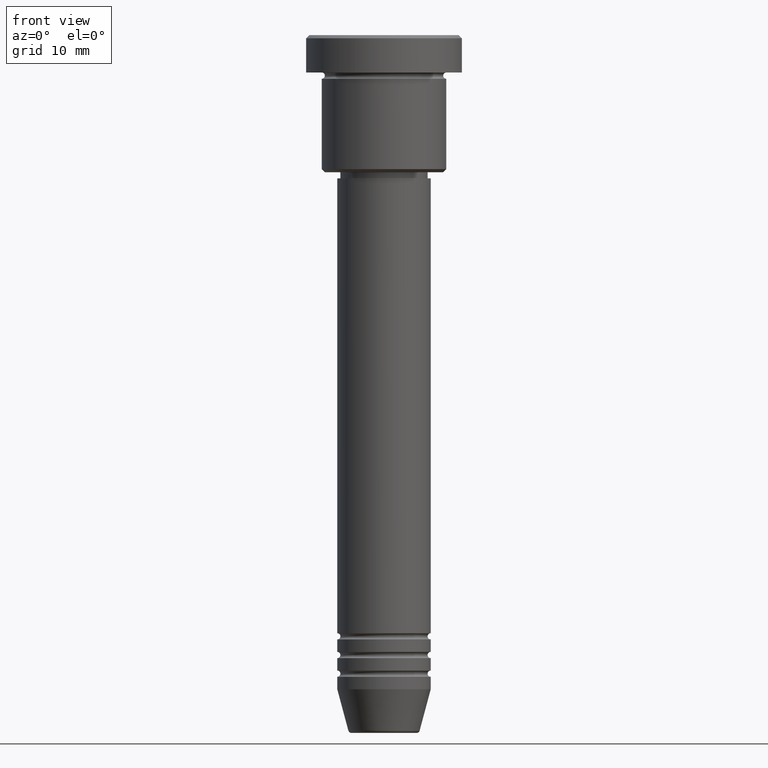
[diagram: clean part render]
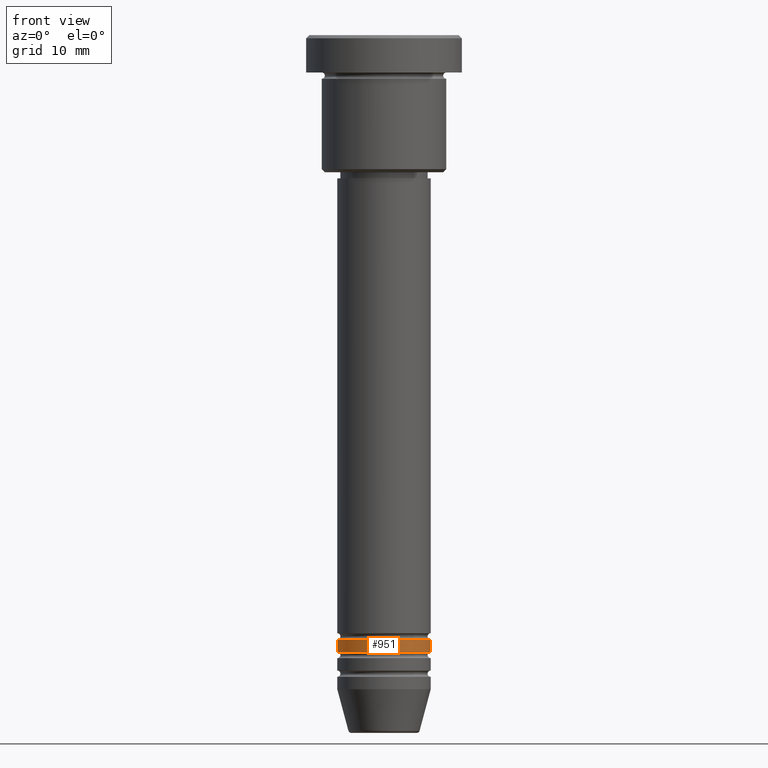
[diagram: same view with one face highlighted and labeled with its STEP entity id]
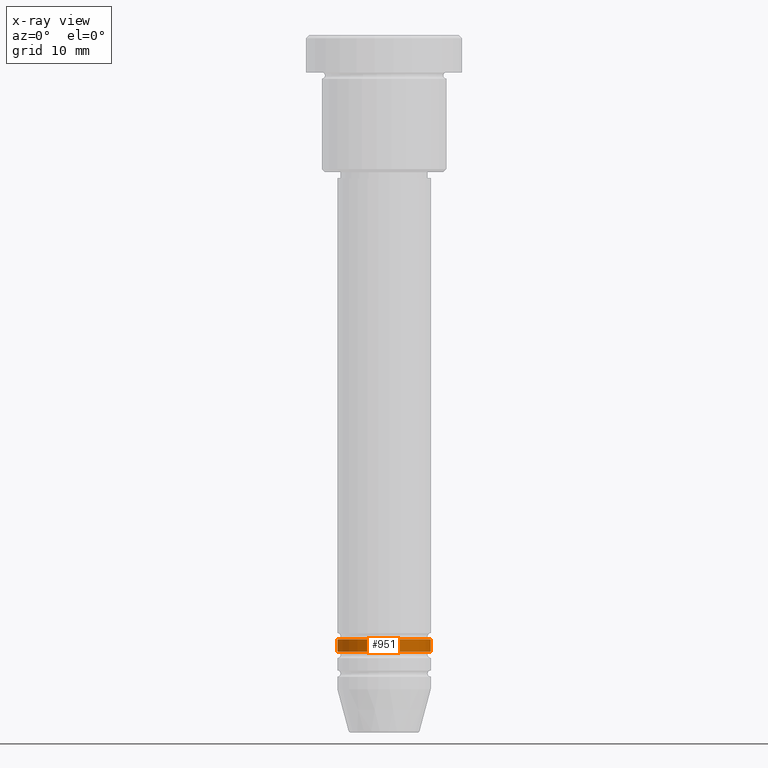
[diagram: x-ray of the same camera — body ghosted, the highlighted face saturated]
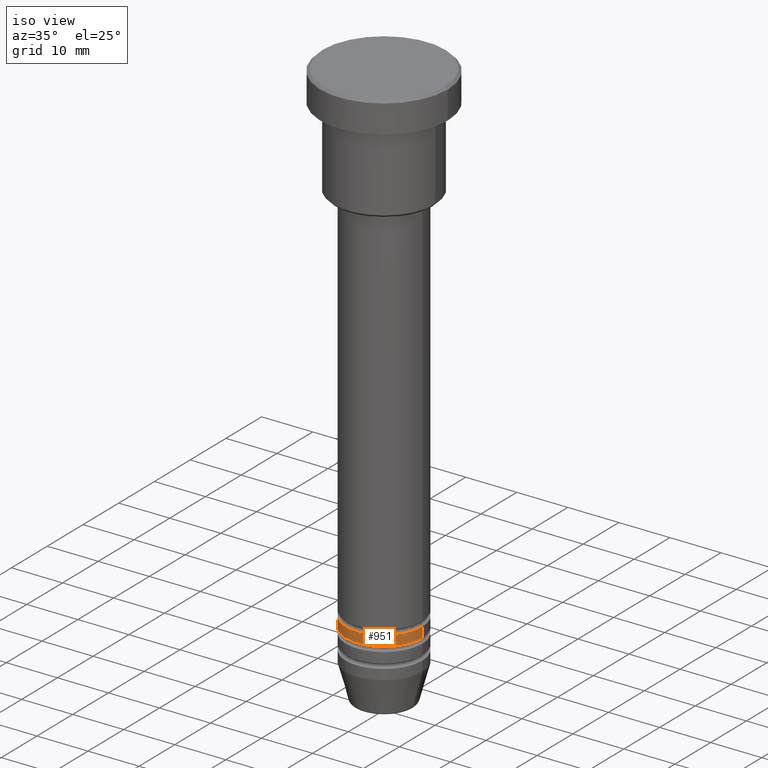
[diagram: same view with one face highlighted and labeled with its STEP entity id]
A machine part, front view. The second image highlights one B-rep face of the part: STEP entity #951.
The next image is the same camera in x-ray: the body ghosted, the highlighted face saturated — about 0% of this face is hidden behind the body in this view.
A second angle (iso view) of the same face is appended — the face is thin or edge-on in the first view.
In plain terms, the highlighted cylindrical surface (partial cylindrical patch) has radius 7.5 mm, axis along (-0, -0, 1).
Its self-contained STEP definition (entity closure, byte-faithful):
#75 = EDGE_CURVE ( 'NONE', #1008, #935, #490, .T. ) ;
#84 = ORIENTED_EDGE ( 'NONE', *, *, #999, .F. ) ;
#100 = CARTESIAN_POINT ( 'NONE',  ( 0.000000000000000000, 0.000000000000000000, -96.99999999999998579 ) ) ;
#108 = VECTOR ( 'NONE', #347, 1000.000000000000000 ) ;
#110 = CARTESIAN_POINT ( 'NONE',  ( -7.500000000000000000, 9.184850993605147944E-16, 0.000000000000000000 ) ) ;
#138 = AXIS2_PLACEMENT_3D ( 'NONE', #705, #796, #1157 ) ;
#165 = ORIENTED_EDGE ( 'NONE', *, *, #315, .T. ) ;
#179 = CARTESIAN_POINT ( 'NONE',  ( 7.500000000000000000, 0.000000000000000000, -98.99999999999997158 ) ) ;
#181 = DIRECTION ( 'NONE',  ( 1.000000000000000000, 0.000000000000000000, 0.000000000000000000 ) ) ;
#187 = EDGE_CURVE ( 'NONE', #1008, #919, #931, .T. ) ;
#194 = DIRECTION ( 'NONE',  ( -0.000000000000000000, -0.000000000000000000, 1.000000000000000000 ) ) ;
#199 = DIRECTION ( 'NONE',  ( -0.000000000000000000, -0.000000000000000000, 1.000000000000000000 ) ) ;
#262 = CYLINDRICAL_SURFACE ( 'NONE', #138, 7.500000000000000000 ) ;
#272 = DIRECTION ( 'NONE',  ( -0.000000000000000000, -0.000000000000000000, 1.000000000000000000 ) ) ;
#298 = CARTESIAN_POINT ( 'NONE',  ( -7.500000000000000000, 9.184850993605147944E-16, -98.99999999999997158 ) ) ;
#315 = EDGE_CURVE ( 'NONE', #935, #1168, #531, .T. ) ;
#347 = DIRECTION ( 'NONE',  ( -0.000000000000000000, -0.000000000000000000, 1.000000000000000000 ) ) ;
#362 = ORIENTED_EDGE ( 'NONE', *, *, #75, .T. ) ;
#393 = AXIS2_PLACEMENT_3D ( 'NONE', #100, #194, #644 ) ;
#404 = CARTESIAN_POINT ( 'NONE',  ( 7.500000000000000000, 0.000000000000000000, -96.99999999999998579 ) ) ;
#490 = CIRCLE ( 'NONE', #1145, 7.500000000000000000 ) ;
#499 = EDGE_LOOP ( 'NONE', ( #536, #362, #165, #84 ) ) ;
#531 = LINE ( 'NONE', #714, #108 ) ;
#536 = ORIENTED_EDGE ( 'NONE', *, *, #187, .F. ) ;
#620 = FACE_OUTER_BOUND ( 'NONE', #499, .T. ) ;
#644 = DIRECTION ( 'NONE',  ( 1.000000000000000000, 0.000000000000000000, 0.000000000000000000 ) ) ;
#705 = CARTESIAN_POINT ( 'NONE',  ( 0.000000000000000000, 0.000000000000000000, 0.000000000000000000 ) ) ;
#714 = CARTESIAN_POINT ( 'NONE',  ( 7.500000000000000000, 0.000000000000000000, 0.000000000000000000 ) ) ;
#796 = DIRECTION ( 'NONE',  ( -0.000000000000000000, -0.000000000000000000, 1.000000000000000000 ) ) ;
#808 = CIRCLE ( 'NONE', #393, 7.500000000000000000 ) ;
#919 = VERTEX_POINT ( 'NONE', #1150 ) ;
#931 = LINE ( 'NONE', #110, #993 ) ;
#935 = VERTEX_POINT ( 'NONE', #179 ) ;
#951 = ADVANCED_FACE ( 'NONE', ( #620 ), #262, .T. ) ;
#993 = VECTOR ( 'NONE', #199, 1000.000000000000000 ) ;
#999 = EDGE_CURVE ( 'NONE', #919, #1168, #808, .T. ) ;
#1008 = VERTEX_POINT ( 'NONE', #298 ) ;
#1086 = CARTESIAN_POINT ( 'NONE',  ( 0.000000000000000000, 0.000000000000000000, -98.99999999999997158 ) ) ;
#1145 = AXIS2_PLACEMENT_3D ( 'NONE', #1086, #272, #181 ) ;
#1150 = CARTESIAN_POINT ( 'NONE',  ( -7.500000000000000000, 9.184850993605147944E-16, -96.99999999999998579 ) ) ;
#1157 = DIRECTION ( 'NONE',  ( 1.000000000000000000, 0.000000000000000000, 0.000000000000000000 ) ) ;
#1168 = VERTEX_POINT ( 'NONE', #404 ) ;